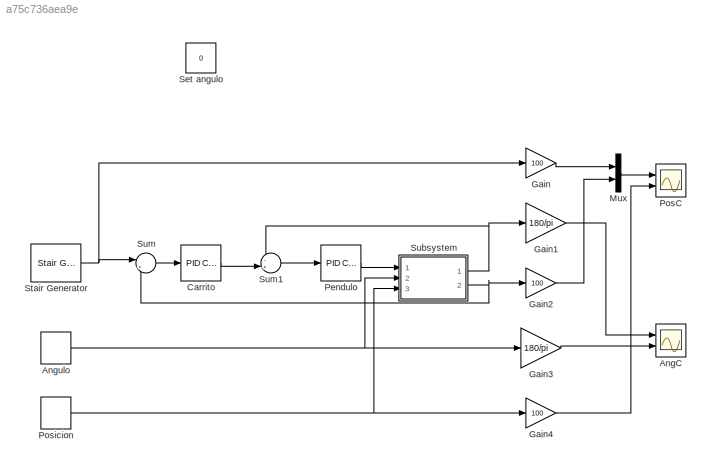
MODEL slx_a75c736aea9e
KIND model
CONFIG AbsTol = auto
CONFIG EnableMultiTasking = off
CONFIG FixedStep = auto
CONFIG MaxStep = auto
CONFIG MinStep = auto
CONFIG RelTol = 1e-3
CONFIG SampleTimeConstraint = Unconstrained
CONFIG SolverName = VariableStepAuto
CONFIG StartTime = 0.0
CONFIG StopTime = 10*ts
BLOCK [Scope] AngC
  Floating = off
  NumInputPorts = 2
  Ports = [2]
  ScopeSpecificationString = Simulink.scopes.TimeScopeBlockCfg('CurrentConfiguration', extmgr.ConfigurationSet(extmgr.Configuration('Core','General UI',true),extmgr.Configuration('Core','Source UI',true),extmgr.Configuration('Sources','WiredSimulink',true,'DataLoggingVariableName','ScopeData1'),extmgr.Configuration('Visuals','Time Domain',true,'SerializedDisplays',{struct('MinYLimReal','-31.72969','MaxYLimReal','26.47559','YL...<+1985ch>
BLOCK [DiscretePulseGenerator] Angulo
  Amplitude = 10*pi/180
  Period = 60
  PhaseDelay = 40
  Ports = [0, 1]
  PulseType = Time based
  PulseWidth = 0.1
BLOCK [Reference] Carrito  REF=pid_lib/PID Controller
  Ports = [1, 1]
  SourceBlock = pid_lib/PID Controller
  SourceProductBaseCode = SL
  SourceType = PID 1dof
BLOCK [Gain] Gain
  Gain = 100
BLOCK [Gain] Gain1
  Gain = 180/pi
BLOCK [Gain] Gain2
  Gain = 100
BLOCK [Gain] Gain3
  Gain = 180/pi
BLOCK [Gain] Gain4
  Gain = 100
BLOCK [Mux] Mux
  DisplayOption = bar
  Inputs = 2
  Ports = [2, 1]
BLOCK [Reference] Pendulo  REF=pid_lib/PID Controller
  Ports = [1, 1]
  SourceBlock = pid_lib/PID Controller
  SourceProductBaseCode = SL
  SourceType = PID 1dof
BLOCK [Scope] PosC
  Floating = off
  NumInputPorts = 2
  Ports = [2]
  ScopeSpecificationString = Simulink.scopes.TimeScopeBlockCfg('CurrentConfiguration', extmgr.ConfigurationSet(extmgr.Configuration('Core','General UI',true),extmgr.Configuration('Core','Source UI',true),extmgr.Configuration('Sources','WiredSimulink',true),extmgr.Configuration('Visuals','Time Domain',true,'SerializedDisplays',{struct('MinYLimReal','-10.23464','MaxYLimReal','53.68212','YLabelReal','','MinYLimMag','0.00000','Ma...<+1452ch>
BLOCK [DiscretePulseGenerator] Posicion
  Amplitude = 5/100
  Period = 60
  PhaseDelay = 20
  Ports = [0, 1]
  PulseType = Time based
BLOCK [Constant] Set angulo
  Value = 0
BLOCK [Reference] Stair Generator  REF=spsStairGeneratorLib/Stair
Generator
  Ports = [0, 1]
  SourceBlock = spsStairGeneratorLib/Stair\nGenerator
  SourceProductBaseCode = PS
  SourceType = Stair Generator
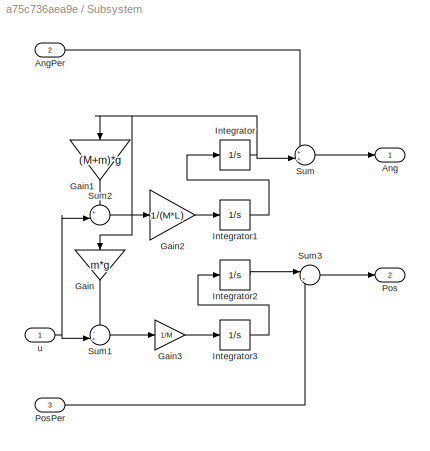
BLOCK [SubSystem] Subsystem
  Ports = [3, 2]
  RequestExecContextInheritance = off
BLOCK [Outport] Subsystem/Ang
BLOCK [Inport] Subsystem/AngPer
  Port = 2
BLOCK [Gain] Subsystem/Gain
  Gain = m*g
  NameLocation = left
BLOCK [Gain] Subsystem/Gain1
  Gain = (M+m)*g
  NameLocation = left
BLOCK [Gain] Subsystem/Gain2
  Gain = 1/(M*L)
BLOCK [Gain] Subsystem/Gain3
  Gain = 1/M
BLOCK [Integrator] Subsystem/Integrator
  InitialCondition = 10*pi/180
  Ports = [1, 1]
BLOCK [Integrator] Subsystem/Integrator1
  Ports = [1, 1]
BLOCK [Integrator] Subsystem/Integrator2
  Ports = [1, 1]
BLOCK [Integrator] Subsystem/Integrator3
  Ports = [1, 1]
BLOCK [Outport] Subsystem/Pos
  Port = 2
BLOCK [Inport] Subsystem/PosPer
  Port = 3
BLOCK [Sum] Subsystem/Sum
  Inputs = ++|
  Ports = [2, 1]
BLOCK [Sum] Subsystem/Sum1
  Inputs = -+|
  Ports = [2, 1]
BLOCK [Sum] Subsystem/Sum2
  Inputs = +-|
  Ports = [2, 1]
BLOCK [Sum] Subsystem/Sum3
  Inputs = |++
  Ports = [2, 1]
BLOCK [Inport] Subsystem/u
BLOCK [Sum] Sum
  Inputs = |+-
  Ports = [2, 1]
BLOCK [Sum] Sum1
  Inputs = -+|
  Ports = [2, 1]
NET Angulo:1 -> Gain3:1, Subsystem:2
LINE Carrito:1 -> Sum1:2
LINE Gain1:1 -> AngC:1
LINE Gain2:1 -> Mux:2
LINE Gain3:1 -> AngC:2
LINE Gain4:1 -> PosC:2
LINE Gain:1 -> Mux:1
LINE Mux:1 -> PosC:1
LINE Pendulo:1 -> Subsystem:1
NET Posicion:1 -> Gain4:1, Subsystem:3
NET Stair Generator:1 -> Gain:1, Sum:1
LINE Subsystem/AngPer:1 -> Subsystem/Sum:1
LINE Subsystem/Gain1:1 -> Subsystem/Sum2:1
LINE Subsystem/Gain2:1 -> Subsystem/Integrator1:1
LINE Subsystem/Gain3:1 -> Subsystem/Integrator3:1
LINE Subsystem/Gain:1 -> Subsystem/Sum1:1
LINE Subsystem/Integrator1:1 -> Subsystem/Integrator:1
LINE Subsystem/Integrator2:1 -> Subsystem/Sum3:1
LINE Subsystem/Integrator3:1 -> Subsystem/Integrator2:1
NET Subsystem/Integrator:1 -> Subsystem/Gain1:1, Subsystem/Gain:1, Subsystem/Sum:2
LINE Subsystem/PosPer:1 -> Subsystem/Sum3:2
LINE Subsystem/Sum1:1 -> Subsystem/Gain3:1
LINE Subsystem/Sum2:1 -> Subsystem/Gain2:1
LINE Subsystem/Sum3:1 -> Subsystem/Pos:1
LINE Subsystem/Sum:1 -> Subsystem/Ang:1
NET Subsystem/u:1 -> Subsystem/Sum1:2, Subsystem/Sum2:2
NET Subsystem:1 -> Gain1:1, Sum1:1
NET Subsystem:2 -> Gain2:1, Sum:2
LINE Sum1:1 -> Pendulo:1
LINE Sum:1 -> Carrito:1
note: NET lines group one-source signal fan-out (src -> all destinations, sorted); 1:1 wires keep LINE
